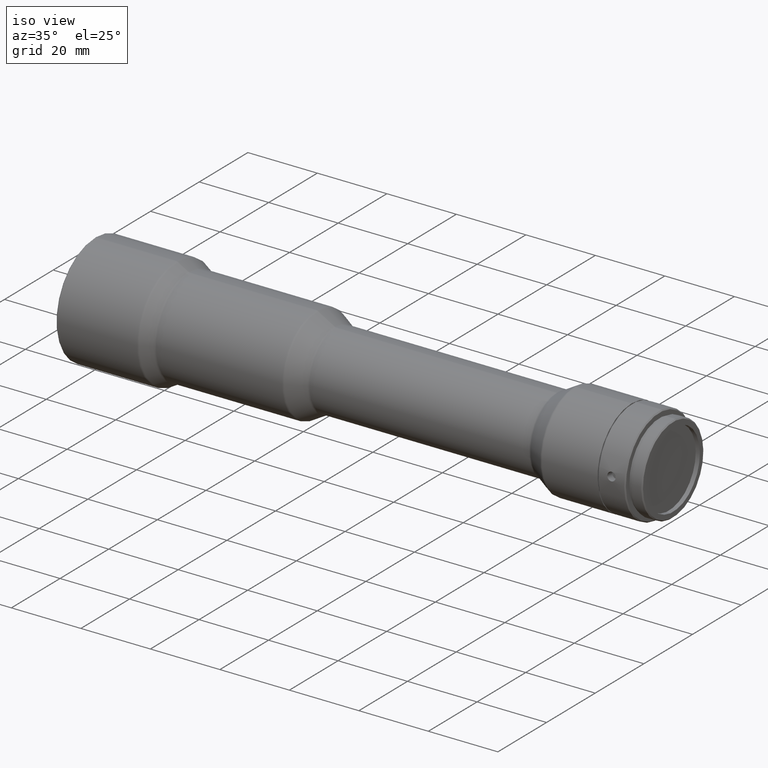
[diagram: clean part render]
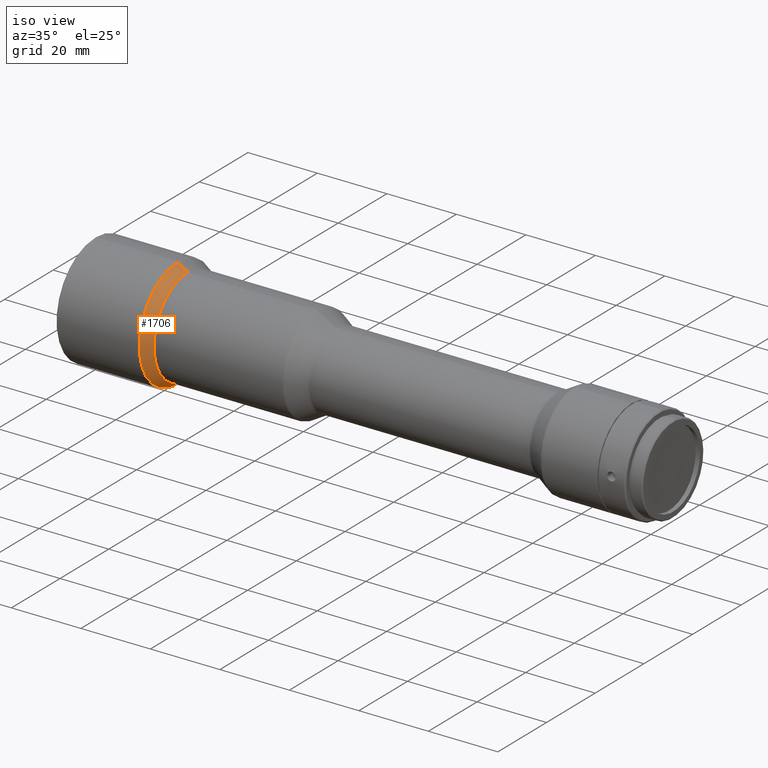
[diagram: same view with one face highlighted and labeled with its STEP entity id]
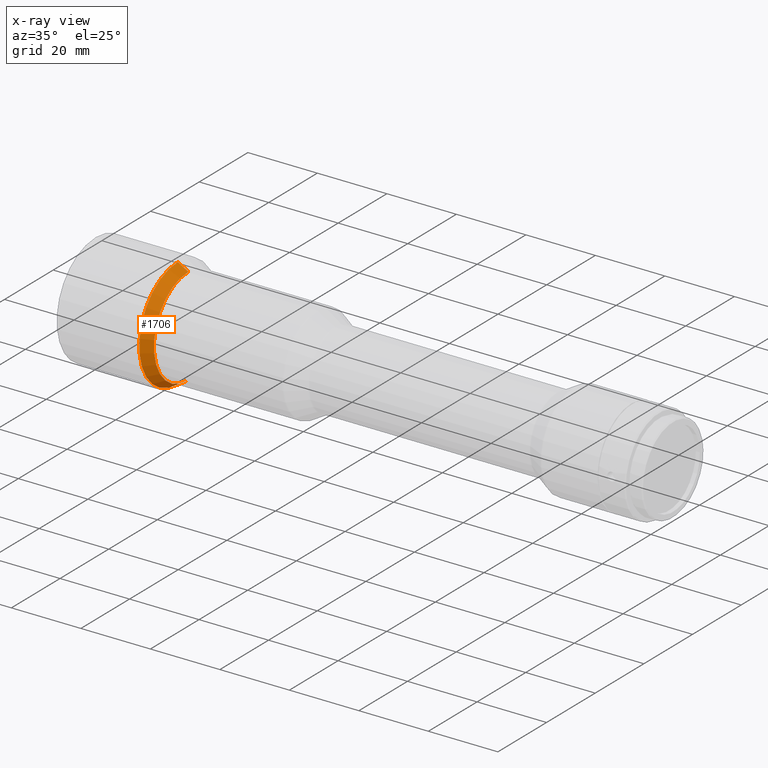
[diagram: x-ray of the same camera — body ghosted, the highlighted face saturated]
A machine part, iso view. The second image highlights one B-rep face of the part: STEP entity #1706.
The next image is the same camera in x-ray: the body ghosted, the highlighted face saturated — about 0% of this face is hidden behind the body in this view.
In plain terms, the highlighted conical surface has half-angle 30 deg.
Its self-contained STEP definition (entity closure, byte-faithful):
#17 = DIRECTION ( 'NONE',  ( 0.0000000000000000000, 0.0000000000000000000, 1.000000000000000000 ) ) ;
#263 = CARTESIAN_POINT ( 'NONE',  ( 23.89999999999999900, 1.951231300614642700E-015, -15.86602540378443600 ) ) ;
#265 = VERTEX_POINT ( 'NONE', #306 ) ;
#306 = CARTESIAN_POINT ( 'NONE',  ( 26.89999999999998800, 0.0000000000000000000, 14.13397459621556100 ) ) ;
#309 = ORIENTED_EDGE ( 'NONE', *, *, #360, .F. ) ;
#360 = EDGE_CURVE ( 'NONE', #977, #1419, #1041, .T. ) ;
#475 = FACE_OUTER_BOUND ( 'NONE', #1493, .T. ) ;
#513 = VERTEX_POINT ( 'NONE', #1285 ) ;
#525 = DIRECTION ( 'NONE',  ( -1.000000000000000000, -0.0000000000000000000, -0.0000000000000000000 ) ) ;
#576 = CARTESIAN_POINT ( 'NONE',  ( 23.89999999999999900, 0.0000000000000000000, 0.0000000000000000000 ) ) ;
#597 = AXIS2_PLACEMENT_3D ( 'NONE', #576, #1133, #17 ) ;
#611 = EDGE_CURVE ( 'NONE', #1419, #513, #1455, .T. ) ;
#648 = DIRECTION ( 'NONE',  ( 0.0000000000000000000, 0.0000000000000000000, 1.000000000000000000 ) ) ;
#691 = LINE ( 'NONE', #765, #1283 ) ;
#765 = CARTESIAN_POINT ( 'NONE',  ( 26.89999999999998800, 0.0000000000000000000, 14.13397459621556100 ) ) ;
#971 = DIRECTION ( 'NONE',  ( -0.8660254037844381500, 6.123233995736777100E-017, -0.5000000000000008900 ) ) ;
#973 = EDGE_CURVE ( 'NONE', #977, #265, #1371, .T. ) ;
#977 = VERTEX_POINT ( 'NONE', #1067 ) ;
#1035 = DIRECTION ( 'NONE',  ( -0.8660254037844381500, 0.0000000000000000000, 0.5000000000000008900 ) ) ;
#1041 = LINE ( 'NONE', #1116, #1227 ) ;
#1067 = CARTESIAN_POINT ( 'NONE',  ( 26.89999999999998800, 1.836970198721029600E-015, -14.13397459621556100 ) ) ;
#1102 = CONICAL_SURFACE ( 'NONE', #1201, 14.13397459621556100, 0.5235987755982999300 ) ;
#1116 = CARTESIAN_POINT ( 'NONE',  ( 26.89999999999998800, 1.730912674848539000E-015, -14.13397459621556100 ) ) ;
#1133 = DIRECTION ( 'NONE',  ( -1.000000000000000000, -0.0000000000000000000, -0.0000000000000000000 ) ) ;
#1201 = AXIS2_PLACEMENT_3D ( 'NONE', #1598, #1275, #1589 ) ;
#1227 = VECTOR ( 'NONE', #971, 1000.000000000000000 ) ;
#1275 = DIRECTION ( 'NONE',  ( -1.000000000000000000, -0.0000000000000000000, -0.0000000000000000000 ) ) ;
#1283 = VECTOR ( 'NONE', #1035, 1000.000000000000000 ) ;
#1285 = CARTESIAN_POINT ( 'NONE',  ( 23.89999999999999900, 0.0000000000000000000, 15.86602540378443600 ) ) ;
#1371 = CIRCLE ( 'NONE', #1584, 14.13397459621556100 ) ;
#1419 = VERTEX_POINT ( 'NONE', #263 ) ;
#1455 = CIRCLE ( 'NONE', #597, 15.86602540378443600 ) ;
#1493 = EDGE_LOOP ( 'NONE', ( #309, #1558, #1710, #1590 ) ) ;
#1503 = CARTESIAN_POINT ( 'NONE',  ( 26.89999999999998800, 0.0000000000000000000, 0.0000000000000000000 ) ) ;
#1525 = EDGE_CURVE ( 'NONE', #265, #513, #691, .T. ) ;
#1558 = ORIENTED_EDGE ( 'NONE', *, *, #973, .T. ) ;
#1584 = AXIS2_PLACEMENT_3D ( 'NONE', #1503, #525, #648 ) ;
#1589 = DIRECTION ( 'NONE',  ( 0.0000000000000000000, 0.0000000000000000000, 1.000000000000000000 ) ) ;
#1590 = ORIENTED_EDGE ( 'NONE', *, *, #611, .F. ) ;
#1598 = CARTESIAN_POINT ( 'NONE',  ( 26.89999999999998800, 0.0000000000000000000, 0.0000000000000000000 ) ) ;
#1706 = ADVANCED_FACE ( 'NONE', ( #475 ), #1102, .T. ) ;
#1710 = ORIENTED_EDGE ( 'NONE', *, *, #1525, .T. ) ;